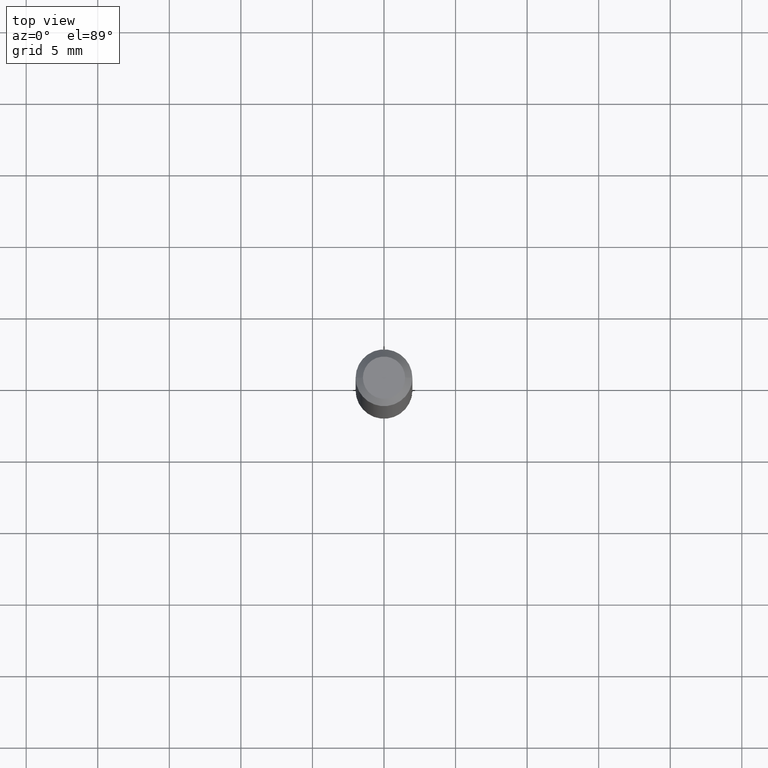
[diagram: clean part render]
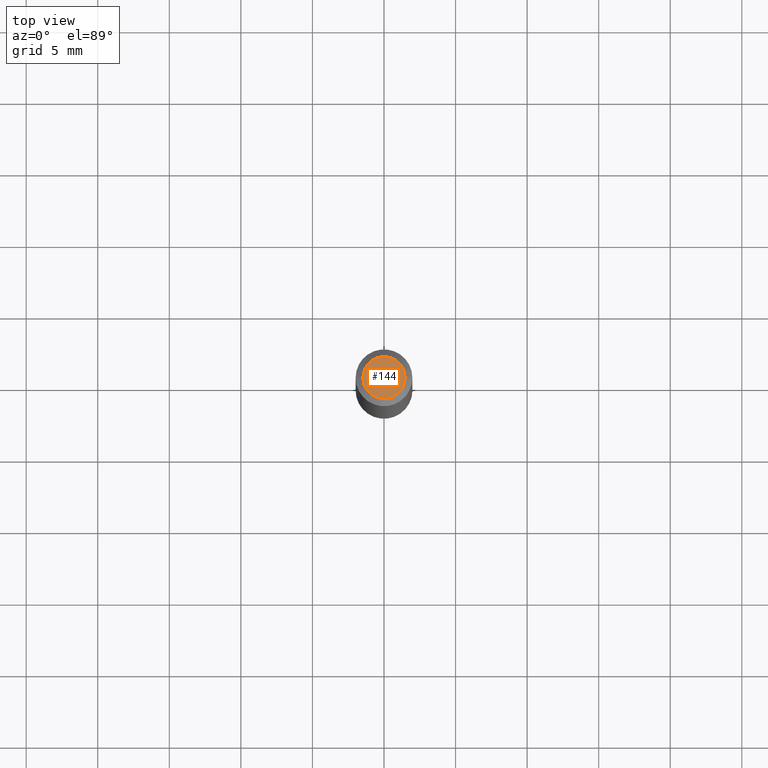
[diagram: same view with one face highlighted and labeled with its STEP entity id]
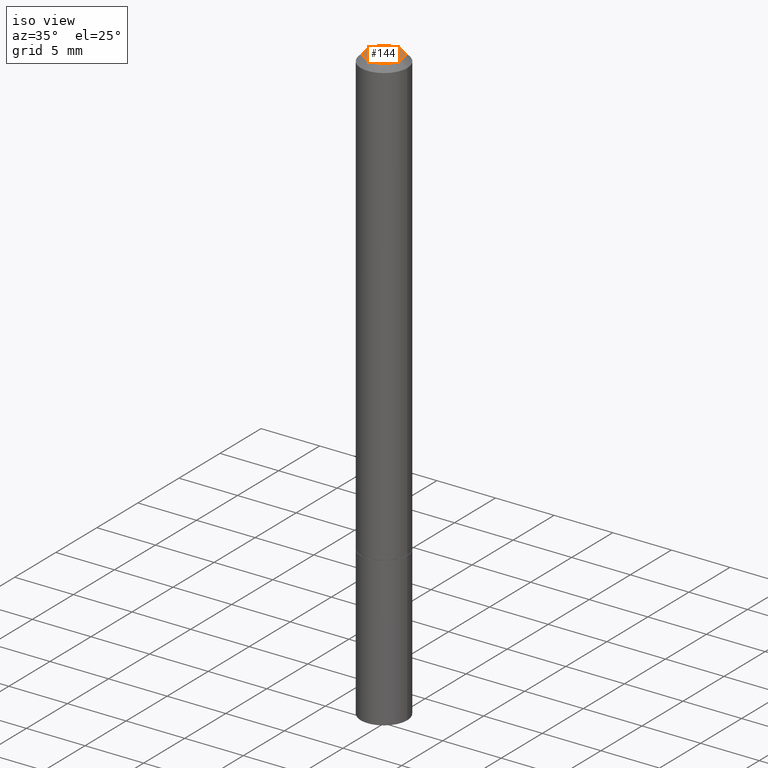
[diagram: same view with one face highlighted and labeled with its STEP entity id]
A machine part, top view. The second image highlights one B-rep face of the part: STEP entity #144.
A second angle (iso view) of the same face is appended — the face is thin or edge-on in the first view.
In plain terms, the highlighted planar face has unit normal (0, -0, -1).
Its self-contained STEP definition (entity closure, byte-faithful):
#9 = DIRECTION ( 'NONE',  ( 2.438088387897960049E-29, -3.491481338843145188E-15, -1.000000000000000000 ) ) ;
#43 = DIRECTION ( 'NONE',  ( -2.445468806185136597E-29, 3.491481338843145583E-15, 1.000000000000000000 ) ) ;
#51 = CIRCLE ( 'NONE', #284, 0.05809999999999985315 ) ;
#71 = FACE_OUTER_BOUND ( 'NONE', #155, .T. ) ;
#110 = CARTESIAN_POINT ( 'NONE',  ( 0.000000000000000000, 0.000000000000000000, 0.000000000000000000 ) ) ;
#115 = DIRECTION ( 'NONE',  ( 1.000000000000000000, -6.982962677686266711E-15, 4.876176775795935793E-29 ) ) ;
#144 = ADVANCED_FACE ( 'NONE', ( #71 ), #169, .F. ) ;
#155 = EDGE_LOOP ( 'NONE', ( #173, #201 ) ) ;
#164 = CARTESIAN_POINT ( 'NONE',  ( 4.057101315735710372E-16, 0.05809999999999985315, -2.028550657867862335E-16 ) ) ;
#169 = PLANE ( 'NONE',  #213 ) ;
#173 = ORIENTED_EDGE ( 'NONE', *, *, #251, .T. ) ;
#175 = CARTESIAN_POINT ( 'NONE',  ( -0.05809999999999985315, 4.406249449620020947E-16, -2.959251149157179307E-30 ) ) ;
#196 = AXIS2_PLACEMENT_3D ( 'NONE', #110, #226, #115 ) ;
#201 = ORIENTED_EDGE ( 'NONE', *, *, #326, .T. ) ;
#206 = CARTESIAN_POINT ( 'NONE',  ( 0.05809999999999985315, -5.021147270366716439E-16, 3.173941575800420060E-30 ) ) ;
#213 = AXIS2_PLACEMENT_3D ( 'NONE', #164, #9, #215 ) ;
#215 = DIRECTION ( 'NONE',  ( -1.000000000000000000, 6.982962677686265922E-15, -4.876176775795935793E-29 ) ) ;
#216 = DIRECTION ( 'NONE',  ( 1.000000000000000000, -6.982962677686266711E-15, 4.876176775795935793E-29 ) ) ;
#226 = DIRECTION ( 'NONE',  ( -2.445468806185136597E-29, 3.491481338843145583E-15, 1.000000000000000000 ) ) ;
#245 = CARTESIAN_POINT ( 'NONE',  ( 0.000000000000000000, 0.000000000000000000, 0.000000000000000000 ) ) ;
#250 = CIRCLE ( 'NONE', #196, 0.05809999999999985315 ) ;
#251 = EDGE_CURVE ( 'NONE', #287, #379, #51, .T. ) ;
#284 = AXIS2_PLACEMENT_3D ( 'NONE', #245, #43, #216 ) ;
#287 = VERTEX_POINT ( 'NONE', #175 ) ;
#326 = EDGE_CURVE ( 'NONE', #379, #287, #250, .T. ) ;
#379 = VERTEX_POINT ( 'NONE', #206 ) ;